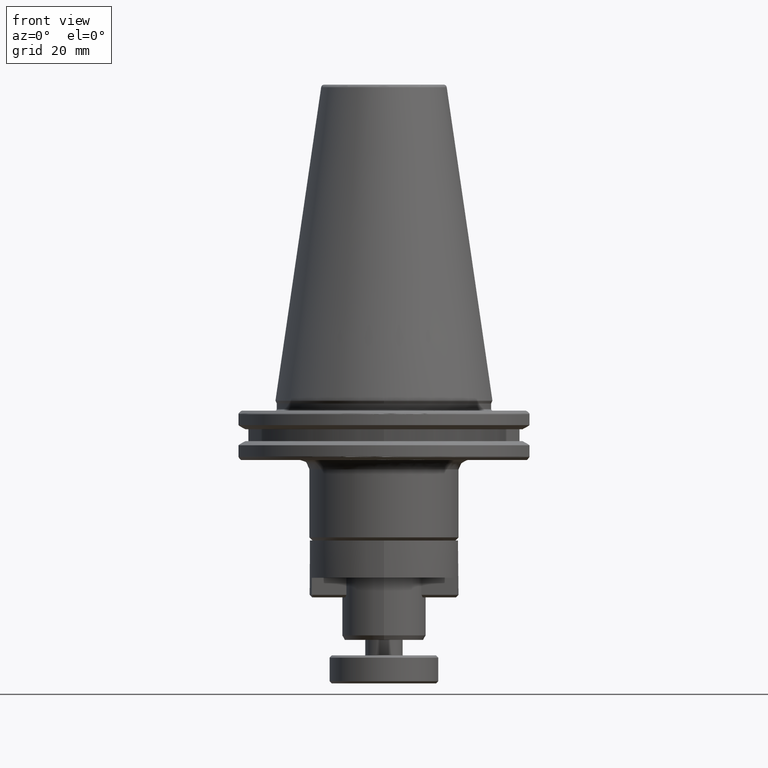
[diagram: clean part render]
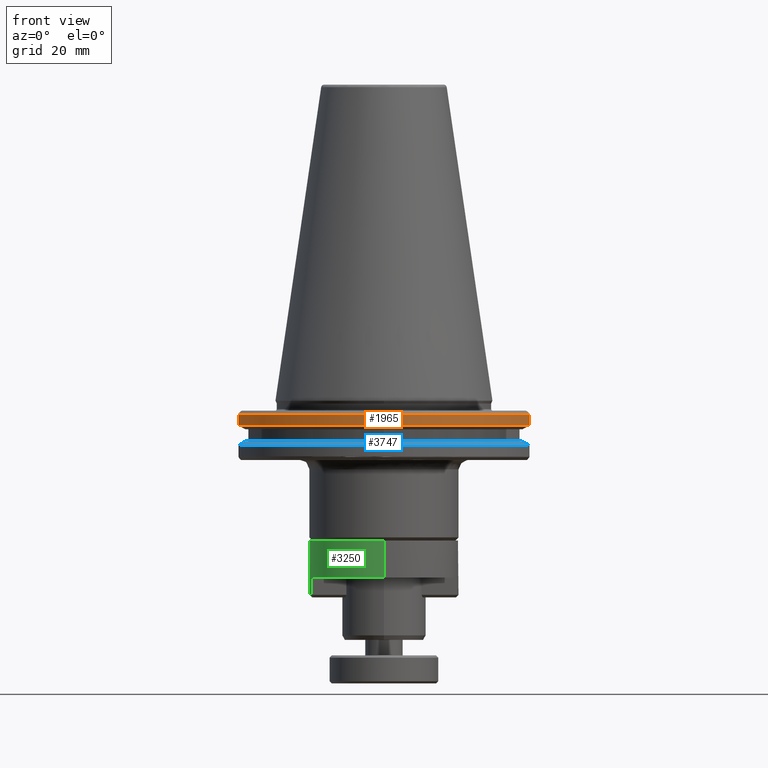
[diagram: same view with three faces highlighted in distinct colors, each labeled with its STEP entity id]
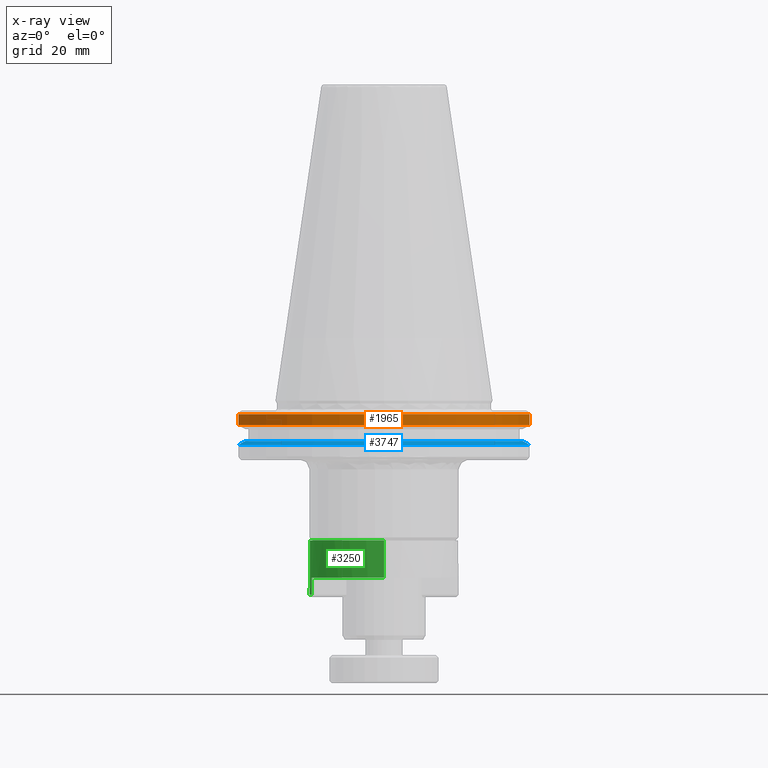
[diagram: x-ray of the same camera — body ghosted, the three highlighted faces saturated]
A machine part, front view with three faces highlighted in distinct colors.
The next image is the same camera in x-ray (body ghosted, the three faces saturated) — at least one of them is partly hidden behind the body in this view.
Their STEP definitions:

[orange] entity #1965 — the highlighted cylindrical surface (partial cylindrical patch) has radius 48.75 mm, axis along (0, 0, 1).
#217 = VERTEX_POINT ( 'NONE', #450 ) ;
#302 = ORIENTED_EDGE ( 'NONE', *, *, #1317, .T. ) ;
#450 = CARTESIAN_POINT ( 'NONE',  ( 46.87302845412701700, -13.39707817112702100, -7.852404736090674600 ) ) ;
#521 = CYLINDRICAL_SURFACE ( 'NONE', #979, 48.75000000000000000 ) ;
#588 = FACE_OUTER_BOUND ( 'NONE', #5359, .T. ) ;
#730 = ORIENTED_EDGE ( 'NONE', *, *, #1047, .T. ) ;
#833 = EDGE_CURVE ( 'NONE', #217, #5160, #1899, .T. ) ;
#979 = AXIS2_PLACEMENT_3D ( 'NONE', #4848, #2159, #1947 ) ;
#1047 = EDGE_CURVE ( 'NONE', #3264, #5495, #1676, .T. ) ;
#1317 = EDGE_CURVE ( 'NONE', #5495, #217, #1366, .T. ) ;
#1366 = CIRCLE ( 'NONE', #4973, 48.75000000000000000 ) ;
#1498 = CARTESIAN_POINT ( 'NONE',  ( -46.83796378633012100, -13.51915856657837800, -7.852404736079600800 ) ) ;
#1577 = VECTOR ( 'NONE', #3276, 1000.000000000000000 ) ;
#1645 = CARTESIAN_POINT ( 'NONE',  ( 46.87302845401846000, -13.39707817101846600, -4.365685425012743300 ) ) ;
#1676 = LINE ( 'NONE', #1730, #1577 ) ;
#1730 = CARTESIAN_POINT ( 'NONE',  ( -46.83796378599999600, -13.51915856600000000, -5.966197414500000700 ) ) ;
#1899 = LINE ( 'NONE', #3987, #1931 ) ;
#1931 = VECTOR ( 'NONE', #4302, 1000.000000000000000 ) ;
#1947 = DIRECTION ( 'NONE',  ( 1.000000000000000000, 0.0000000000000000000, 0.0000000000000000000 ) ) ;
#1965 = ADVANCED_FACE ( 'NONE', ( #588 ), #521, .T. ) ;
#2137 = CARTESIAN_POINT ( 'NONE',  ( -46.83796378615755200, -13.51915856627603500, -4.365685424644529400 ) ) ;
#2159 = DIRECTION ( 'NONE',  ( 0.0000000000000000000, -0.0000000000000000000, 1.000000000000000000 ) ) ;
#2410 = DIRECTION ( 'NONE',  ( 1.000000000000000000, 0.0000000000000000000, 3.558407130208835400E-017 ) ) ;
#2415 = DIRECTION ( 'NONE',  ( 0.0000000000000000000, 0.0000000000000000000, 1.000000000000000000 ) ) ;
#2418 = CARTESIAN_POINT ( 'NONE',  ( 0.0000000000000000000, 0.0000000000000000000, -4.365685425000001500 ) ) ;
#3264 = VERTEX_POINT ( 'NONE', #2137 ) ;
#3276 = DIRECTION ( 'NONE',  ( -0.0000000000000000000, -0.0000000000000000000, -1.000000000000000000 ) ) ;
#3515 = AXIS2_PLACEMENT_3D ( 'NONE', #2418, #2415, #2410 ) ;
#3987 = CARTESIAN_POINT ( 'NONE',  ( 46.87302845399999300, -13.39707817099999900, -5.987036196000000000 ) ) ;
#4250 = ORIENTED_EDGE ( 'NONE', *, *, #833, .T. ) ;
#4302 = DIRECTION ( 'NONE',  ( 0.0000000000000000000, 0.0000000000000000000, 1.000000000000000000 ) ) ;
#4357 = CIRCLE ( 'NONE', #3515, 48.75000000000000000 ) ;
#4848 = CARTESIAN_POINT ( 'NONE',  ( 0.0000000000000000000, 0.0000000000000000000, -7.852404735999999600 ) ) ;
#4973 = AXIS2_PLACEMENT_3D ( 'NONE', #5280, #5456, #5322 ) ;
#4978 = EDGE_CURVE ( 'NONE', #3264, #5160, #4357, .T. ) ;
#5160 = VERTEX_POINT ( 'NONE', #1645 ) ;
#5280 = CARTESIAN_POINT ( 'NONE',  ( 0.0000000000000000000, 0.0000000000000000000, -7.852404736000018200 ) ) ;
#5322 = DIRECTION ( 'NONE',  ( 1.000000000000000000, 0.0000000000000000000, 3.914247843229718500E-016 ) ) ;
#5359 = EDGE_LOOP ( 'NONE', ( #4250, #5427, #730, #302 ) ) ;
#5427 = ORIENTED_EDGE ( 'NONE', *, *, #4978, .F. ) ;
#5456 = DIRECTION ( 'NONE',  ( 0.0000000000000000000, 0.0000000000000000000, 1.000000000000000000 ) ) ;
#5495 = VERTEX_POINT ( 'NONE', #1498 ) ;

[blue] entity #3747 — the highlighted conical surface has half-angle 60 deg.
#62 = CARTESIAN_POINT ( 'NONE',  ( -46.45602160612465100, -12.84999999964422200, -14.03031879156786300 ) ) ;
#102 = CARTESIAN_POINT ( 'NONE',  ( -46.58277177726334600, -13.07206451550357700, -14.13502945699378100 ) ) ;
#170 = EDGE_CURVE ( 'NONE', #1494, #1009, #602, .T. ) ;
#180 = CARTESIAN_POINT ( 'NONE',  ( -46.71008400403042800, -13.29511436546456000, -14.24078821545014300 ) ) ;
#201 = CARTESIAN_POINT ( 'NONE',  ( -46.83796378751671300, -13.51915856131406600, -14.34759526380272900 ) ) ;
#247 = CIRCLE ( 'NONE', #4739, 46.41589653399999800 ) ;
#316 = EDGE_LOOP ( 'NONE', ( #5382, #5304, #5286, #2005, #1216, #947 ) ) ;
#602 = B_SPLINE_CURVE_WITH_KNOTS ( 'NONE', 3,
 ( #62, #102, #180, #201 ),
 .UNSPECIFIED., .F., .F.,
 ( 4, 4 ),
 ( 0.0000000000000000000, 1.000000000000000000 ),
 .UNSPECIFIED. ) ;
#811 = CARTESIAN_POINT ( 'NONE',  ( 0.0000000000000000000, 0.0000000000000000000, -13.00000000000000200 ) ) ;
#843 = FACE_OUTER_BOUND ( 'NONE', #316, .T. ) ;
#848 = VERTEX_POINT ( 'NONE', #4737 ) ;
#947 = ORIENTED_EDGE ( 'NONE', *, *, #3385, .F. ) ;
#1009 = VERTEX_POINT ( 'NONE', #2126 ) ;
#1012 = DIRECTION ( 'NONE',  ( 0.0000000000000000000, 1.000000000000000000, 0.0000000000000000000 ) ) ;
#1093 = DIRECTION ( 'NONE',  ( 0.0000000000000000000, 1.868673887087486100E-017, -1.000000000000000000 ) ) ;
#1216 = ORIENTED_EDGE ( 'NONE', *, *, #170, .T. ) ;
#1346 = DIRECTION ( 'NONE',  ( -0.0000000000000000000, -1.868673887087486100E-017, 1.000000000000000000 ) ) ;
#1355 = CARTESIAN_POINT ( 'NONE',  ( 0.0000000000000000000, -7.486229493314983400E-032, -12.99999999999999800 ) ) ;
#1494 = VERTEX_POINT ( 'NONE', #3977 ) ;
#1510 = B_SPLINE_CURVE_WITH_KNOTS ( 'NONE', 3,
 ( #3016, #3054, #3029, #3009 ),
 .UNSPECIFIED., .F., .F.,
 ( 4, 4 ),
 ( 0.0000000000000000000, 0.9999998147378591500 ),
 .UNSPECIFIED. ) ;
#1548 = B_SPLINE_CURVE_WITH_KNOTS ( 'NONE', 3,
 ( #2692, #2729, #2715, #2682 ),
 .UNSPECIFIED., .F., .F.,
 ( 4, 4 ),
 ( 0.0000000000000000000, 1.000000000000000000 ),
 .UNSPECIFIED. ) ;
#2005 = ORIENTED_EDGE ( 'NONE', *, *, #3601, .T. ) ;
#2126 = CARTESIAN_POINT ( 'NONE',  ( -46.83796378751671300, -13.51915856131406600, -14.34759526380272900 ) ) ;
#2682 = CARTESIAN_POINT ( 'NONE',  ( 46.32595028213669500, -12.84999999913669000, -13.95794714651749600 ) ) ;
#2692 = CARTESIAN_POINT ( 'NONE',  ( 44.60171465393138100, -12.85000000000000100, -13.00000000000000000 ) ) ;
#2715 = CARTESIAN_POINT ( 'NONE',  ( 45.74111285003900900, -12.85000000000000100, -13.63257633996739500 ) ) ;
#2729 = CARTESIAN_POINT ( 'NONE',  ( 45.16636764543167000, -12.85000000000000100, -13.31326062433717700 ) ) ;
#2743 = AXIS2_PLACEMENT_3D ( 'NONE', #811, #1093, #1012 ) ;
#3009 = CARTESIAN_POINT ( 'NONE',  ( -46.45602160612465100, -12.84999999964422200, -14.03031879156786300 ) ) ;
#3016 = CARTESIAN_POINT ( 'NONE',  ( -44.60171466751685200, -12.84999999114415700, -13.00000000000000000 ) ) ;
#3029 = CARTESIAN_POINT ( 'NONE',  ( -45.82655859115514800, -12.85000000027563500, -13.68005083175191800 ) ) ;
#3054 = CARTESIAN_POINT ( 'NONE',  ( -45.20845717420533600, -12.85000000084099400, -13.33661123530294600 ) ) ;
#3108 = EDGE_CURVE ( 'NONE', #5736, #5344, #247, .T. ) ;
#3385 = EDGE_CURVE ( 'NONE', #4082, #1009, #4999, .T. ) ;
#3498 = DIRECTION ( 'NONE',  ( -1.000000000000000000, 0.0000000000000000000, 1.850371707708594400E-015 ) ) ;
#3601 = EDGE_CURVE ( 'NONE', #5736, #1494, #1510, .T. ) ;
#3628 = DIRECTION ( 'NONE',  ( 0.0000000000000000000, 0.0000000000000000000, -1.000000000000000000 ) ) ;
#3660 = CARTESIAN_POINT ( 'NONE',  ( 0.0000000000000000000, 0.0000000000000000000, -14.34759526400009100 ) ) ;
#3661 = EDGE_CURVE ( 'NONE', #5344, #848, #1548, .T. ) ;
#3747 = ADVANCED_FACE ( 'NONE', ( #843 ), #3900, .T. ) ;
#3900 = CONICAL_SURFACE ( 'NONE', #2743, 46.41589653400000500, 1.047197551328834500 ) ;
#3977 = CARTESIAN_POINT ( 'NONE',  ( -46.45602160612465100, -12.84999999964422200, -14.03031879156786300 ) ) ;
#4006 = B_SPLINE_CURVE_WITH_KNOTS ( 'NONE', 3,
 ( #4897, #5539, #5324, #5211 ),
 .UNSPECIFIED., .F., .F.,
 ( 4, 4 ),
 ( 3.178883170082162900E-013, 0.0008662648049828210100 ),
 .UNSPECIFIED. ) ;
#4082 = VERTEX_POINT ( 'NONE', #4877 ) ;
#4454 = CARTESIAN_POINT ( 'NONE',  ( 44.60171465393138100, -12.85000000000000100, -13.00000000000000000 ) ) ;
#4629 = AXIS2_PLACEMENT_3D ( 'NONE', #3660, #3628, #3498 ) ;
#4737 = CARTESIAN_POINT ( 'NONE',  ( 46.32595028213669500, -12.84999999913669000, -13.95794714651749600 ) ) ;
#4739 = AXIS2_PLACEMENT_3D ( 'NONE', #1355, #1346, #5716 ) ;
#4855 = CARTESIAN_POINT ( 'NONE',  ( -44.60171466751685200, -12.84999999114415700, -13.00000000000000000 ) ) ;
#4877 = CARTESIAN_POINT ( 'NONE',  ( 46.87302845553985300, -13.39707817253985700, -14.34759526491779400 ) ) ;
#4897 = CARTESIAN_POINT ( 'NONE',  ( 46.32595028213669500, -12.84999999913669000, -13.95794714651749600 ) ) ;
#4999 = CIRCLE ( 'NONE', #4629, 48.75000000000000000 ) ;
#5211 = CARTESIAN_POINT ( 'NONE',  ( 46.87302845553985300, -13.39707817253985700, -14.34759526491779400 ) ) ;
#5286 = ORIENTED_EDGE ( 'NONE', *, *, #3108, .F. ) ;
#5304 = ORIENTED_EDGE ( 'NONE', *, *, #3661, .F. ) ;
#5324 = CARTESIAN_POINT ( 'NONE',  ( 46.69074934297593400, -13.21479905997593600, -14.21748737972169100 ) ) ;
#5344 = VERTEX_POINT ( 'NONE', #4454 ) ;
#5382 = ORIENTED_EDGE ( 'NONE', *, *, #5693, .F. ) ;
#5539 = CARTESIAN_POINT ( 'NONE',  ( 46.50839100795452900, -13.03244072495452800, -14.08760120890893200 ) ) ;
#5693 = EDGE_CURVE ( 'NONE', #848, #4082, #4006, .T. ) ;
#5716 = DIRECTION ( 'NONE',  ( 8.881784197001252300E-016, 1.000000000000000000, 0.0000000000000000000 ) ) ;
#5736 = VERTEX_POINT ( 'NONE', #4855 ) ;

[green] entity #3250 — the highlighted cylindrical surface (partial cylindrical patch) has radius 24 mm, axis along (0, 0, 1).
#175 = CARTESIAN_POINT ( 'NONE',  ( 0.0000000000000000000, 0.0000000000000000000, -11.50000000000000000 ) ) ;
#397 = VECTOR ( 'NONE', #5714, 1000.000000000000000 ) ;
#458 = CIRCLE ( 'NONE', #1980, 24.00000000000000000 ) ;
#837 = LINE ( 'NONE', #4021, #5391 ) ;
#1218 = VECTOR ( 'NONE', #3860, 1000.000000000000000 ) ;
#1222 = CIRCLE ( 'NONE', #1442, 24.00000000000000000 ) ;
#1247 = LINE ( 'NONE', #3783, #1218 ) ;
#1293 = AXIS2_PLACEMENT_3D ( 'NONE', #2739, #2716, #2605 ) ;
#1353 = ORIENTED_EDGE ( 'NONE', *, *, #4609, .F. ) ;
#1395 = CIRCLE ( 'NONE', #1293, 24.00000000000000000 ) ;
#1442 = AXIS2_PLACEMENT_3D ( 'NONE', #4118, #4142, #4149 ) ;
#1450 = EDGE_CURVE ( 'NONE', #3607, #5369, #1247, .T. ) ;
#1479 = EDGE_CURVE ( 'NONE', #5369, #3695, #1222, .T. ) ;
#1499 = DIRECTION ( 'NONE',  ( 1.000000000000000000, 0.0000000000000000000, 0.0000000000000000000 ) ) ;
#1515 = LINE ( 'NONE', #5680, #397 ) ;
#1522 = DIRECTION ( 'NONE',  ( 0.0000000000000000000, -0.0000000000000000000, 1.000000000000000000 ) ) ;
#1523 = CIRCLE ( 'NONE', #2080, 24.00000000000000000 ) ;
#1527 = CARTESIAN_POINT ( 'NONE',  ( 0.0000000000000000000, 0.0000000000000000000, -6.000000004999998600 ) ) ;
#1581 = VECTOR ( 'NONE', #1724, 1000.000000000000000 ) ;
#1629 = CARTESIAN_POINT ( 'NONE',  ( 6.000000000000000000, 23.23790007712225100, -6.000000002499999300 ) ) ;
#1651 = DIRECTION ( 'NONE',  ( 0.0000000000000000000, -0.0000000000000000000, 1.000000000000000000 ) ) ;
#1656 = ORIENTED_EDGE ( 'NONE', *, *, #1479, .T. ) ;
#1677 = ORIENTED_EDGE ( 'NONE', *, *, #5131, .F. ) ;
#1724 = DIRECTION ( 'NONE',  ( -0.0000000000000000000, -0.0000000000000000000, 1.000000000000000000 ) ) ;
#1748 = CARTESIAN_POINT ( 'NONE',  ( 6.000000000000000000, 23.23790007700000300, -8.750000000000000000 ) ) ;
#1752 = CARTESIAN_POINT ( 'NONE',  ( 24.00000000000000000, 0.0000000000000000000, -6.000000004999998600 ) ) ;
#1980 = AXIS2_PLACEMENT_3D ( 'NONE', #1527, #1522, #1499 ) ;
#2080 = AXIS2_PLACEMENT_3D ( 'NONE', #3102, #3094, #3084 ) ;
#2182 = ORIENTED_EDGE ( 'NONE', *, *, #5707, .F. ) ;
#2189 = ORIENTED_EDGE ( 'NONE', *, *, #4829, .F. ) ;
#2243 = CARTESIAN_POINT ( 'NONE',  ( 24.00000000000000000, 0.0000000000000000000, 5.999999999999998200 ) ) ;
#2286 = DIRECTION ( 'NONE',  ( 1.000000000000000000, 0.0000000000000000000, 0.0000000000000000000 ) ) ;
#2575 = AXIS2_PLACEMENT_3D ( 'NONE', #175, #1651, #2286 ) ;
#2605 = DIRECTION ( 'NONE',  ( 1.000000000000000000, 8.881784197001252300E-016, 0.0000000000000000000 ) ) ;
#2716 = DIRECTION ( 'NONE',  ( -0.0000000000000000000, 0.0000000000000000000, -1.000000000000000000 ) ) ;
#2739 = CARTESIAN_POINT ( 'NONE',  ( 0.0000000000000000000, 0.0000000000000000000, -6.000000004999998600 ) ) ;
#2829 = VERTEX_POINT ( 'NONE', #4554 ) ;
#2924 = CARTESIAN_POINT ( 'NONE',  ( -24.00000000000000000, 2.939152317953647900E-015, -6.000000004999998600 ) ) ;
#2927 = CYLINDRICAL_SURFACE ( 'NONE', #2575, 24.00000000000000000 ) ;
#3074 = FACE_OUTER_BOUND ( 'NONE', #5375, .T. ) ;
#3084 = DIRECTION ( 'NONE',  ( 1.000000000000000000, 0.0000000000000000000, 1.445602896647339200E-016 ) ) ;
#3094 = DIRECTION ( 'NONE',  ( -0.0000000000000000000, -0.0000000000000000000, -1.000000000000000000 ) ) ;
#3102 = CARTESIAN_POINT ( 'NONE',  ( 0.0000000000000000000, 0.0000000000000000000, -11.50000000000000400 ) ) ;
#3250 = ADVANCED_FACE ( 'NONE', ( #3074 ), #2927, .T. ) ;
#3607 = VERTEX_POINT ( 'NONE', #2924 ) ;
#3632 = CARTESIAN_POINT ( 'NONE',  ( -6.000000000732279100, 23.23790007705542800, -11.50000000000000400 ) ) ;
#3695 = VERTEX_POINT ( 'NONE', #2243 ) ;
#3783 = CARTESIAN_POINT ( 'NONE',  ( -24.00000000000000000, 2.939152317953647900E-015, -11.50000000000000000 ) ) ;
#3860 = DIRECTION ( 'NONE',  ( 0.0000000000000000000, -0.0000000000000000000, 1.000000000000000000 ) ) ;
#4008 = DIRECTION ( 'NONE',  ( -0.0000000000000000000, -0.0000000000000000000, -1.000000000000000000 ) ) ;
#4021 = CARTESIAN_POINT ( 'NONE',  ( -6.000000001464559100, 23.23790007686635700, -2.749999999999999600 ) ) ;
#4118 = CARTESIAN_POINT ( 'NONE',  ( 0.0000000000000000000, 0.0000000000000000000, 5.999999999999998200 ) ) ;
#4135 = EDGE_CURVE ( 'NONE', #3607, #2829, #1395, .T. ) ;
#4142 = DIRECTION ( 'NONE',  ( -0.0000000000000000000, 0.0000000000000000000, -1.000000000000000000 ) ) ;
#4149 = DIRECTION ( 'NONE',  ( 1.000000000000000000, 0.0000000000000000000, 0.0000000000000000000 ) ) ;
#4157 = ORIENTED_EDGE ( 'NONE', *, *, #5164, .T. ) ;
#4288 = CARTESIAN_POINT ( 'NONE',  ( -24.00000000000000000, 2.939152317953647900E-015, 5.999999999999998200 ) ) ;
#4343 = CARTESIAN_POINT ( 'NONE',  ( 5.999999999751677700, 23.23790007651785300, -11.50000000024832200 ) ) ;
#4498 = VERTEX_POINT ( 'NONE', #1629 ) ;
#4531 = ORIENTED_EDGE ( 'NONE', *, *, #1450, .T. ) ;
#4554 = CARTESIAN_POINT ( 'NONE',  ( -6.000000000366139100, 23.23790007705543200, -6.000000002499999300 ) ) ;
#4609 = EDGE_CURVE ( 'NONE', #2829, #4760, #837, .T. ) ;
#4760 = VERTEX_POINT ( 'NONE', #3632 ) ;
#4829 = EDGE_CURVE ( 'NONE', #4760, #5396, #1523, .T. ) ;
#5131 = EDGE_CURVE ( 'NONE', #5396, #4498, #5135, .T. ) ;
#5135 = LINE ( 'NONE', #1748, #1581 ) ;
#5164 = EDGE_CURVE ( 'NONE', #5481, #4498, #458, .T. ) ;
#5369 = VERTEX_POINT ( 'NONE', #4288 ) ;
#5375 = EDGE_LOOP ( 'NONE', ( #5381, #4531, #1656, #2182, #4157, #1677, #2189, #1353 ) ) ;
#5381 = ORIENTED_EDGE ( 'NONE', *, *, #4135, .F. ) ;
#5391 = VECTOR ( 'NONE', #4008, 1000.000000000000000 ) ;
#5396 = VERTEX_POINT ( 'NONE', #4343 ) ;
#5481 = VERTEX_POINT ( 'NONE', #1752 ) ;
#5680 = CARTESIAN_POINT ( 'NONE',  ( 24.00000000000000000, 0.0000000000000000000, -11.50000000000000000 ) ) ;
#5707 = EDGE_CURVE ( 'NONE', #5481, #3695, #1515, .T. ) ;
#5714 = DIRECTION ( 'NONE',  ( 0.0000000000000000000, -0.0000000000000000000, 1.000000000000000000 ) ) ;